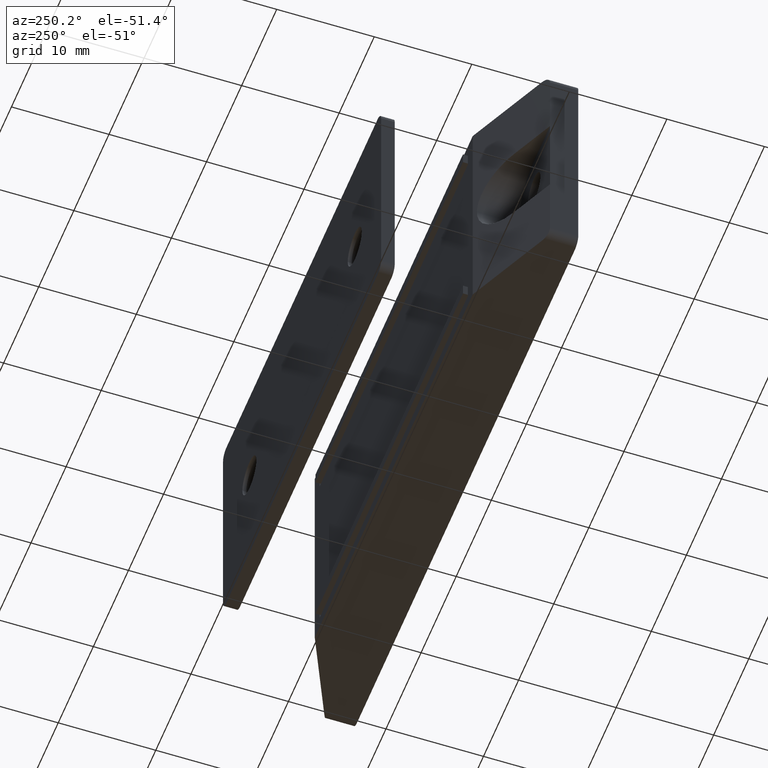
[diagram: clean part render]
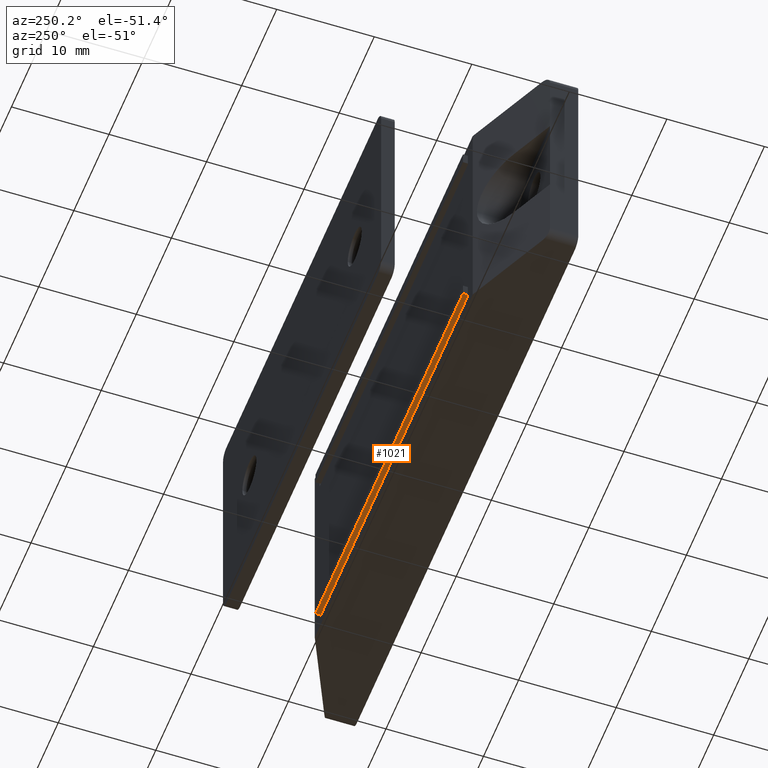
[diagram: same view with one face highlighted and labeled with its STEP entity id]
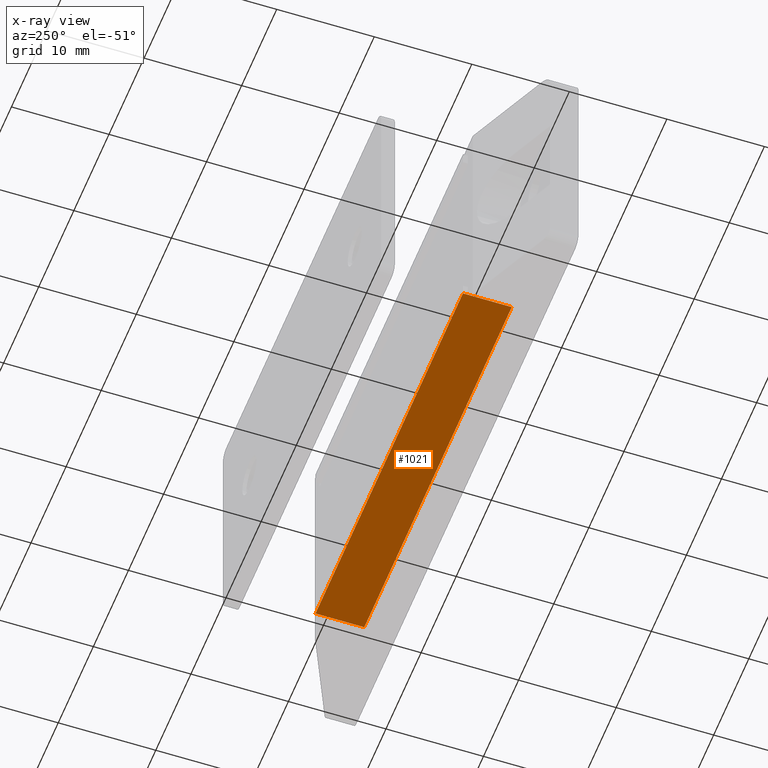
[diagram: x-ray of the same camera — body ghosted, the highlighted face saturated]
A machine part, auxiliary view. The second image highlights one B-rep face of the part: STEP entity #1021.
The next image is the same camera in x-ray: the body ghosted, the highlighted face saturated — about 0% of this face is hidden behind the body in this view.
In plain terms, the highlighted planar face has unit normal (0, -0, -1).
Its self-contained STEP definition (entity closure, byte-faithful):
#97=PLANE('',#1116);
#155=FACE_OUTER_BOUND('',#229,.T.);
#229=EDGE_LOOP('',(#940,#941,#942,#943));
#347=LINE('',#1677,#449);
#355=LINE('',#1692,#457);
#356=LINE('',#1694,#458);
#357=LINE('',#1695,#459);
#449=VECTOR('',#1386,5.);
#457=VECTOR('',#1398,5.);
#458=VECTOR('',#1401,42.);
#459=VECTOR('',#1402,42.);
#549=VERTEX_POINT('',#1674);
#550=VERTEX_POINT('',#1676);
#554=VERTEX_POINT('',#1688);
#555=VERTEX_POINT('',#1690);
#677=EDGE_CURVE('',#549,#550,#347,.T.);
#685=EDGE_CURVE('',#554,#555,#355,.T.);
#686=EDGE_CURVE('',#549,#554,#356,.T.);
#687=EDGE_CURVE('',#550,#555,#357,.T.);
#940=ORIENTED_EDGE('',*,*,#686,.T.);
#941=ORIENTED_EDGE('',*,*,#685,.T.);
#942=ORIENTED_EDGE('',*,*,#687,.F.);
#943=ORIENTED_EDGE('',*,*,#677,.F.);
#1021=ADVANCED_FACE('',(#155),#97,.T.);
#1116=AXIS2_PLACEMENT_3D('',#1693,#1399,#1400);
#1386=DIRECTION('',(0.,0.,-1.));
#1398=DIRECTION('',(0.,0.,-1.));
#1399=DIRECTION('center_axis',(0.,-1.,0.));
#1400=DIRECTION('ref_axis',(-1.,0.,0.));
#1401=DIRECTION('',(-1.,0.,0.));
#1402=DIRECTION('',(-1.,0.,0.));
#1674=CARTESIAN_POINT('',(21.,-10.75,0.6));
#1676=CARTESIAN_POINT('',(21.,-10.75,-4.4));
#1677=CARTESIAN_POINT('',(21.,-10.75,0.6));
#1688=CARTESIAN_POINT('',(-21.,-10.75,0.6));
#1690=CARTESIAN_POINT('',(-21.,-10.75,-4.4));
#1692=CARTESIAN_POINT('',(-21.,-10.75,0.6));
#1693=CARTESIAN_POINT('Origin',(21.,-10.75,0.6));
#1694=CARTESIAN_POINT('',(21.,-10.75,0.6));
#1695=CARTESIAN_POINT('',(21.,-10.75,-4.4));